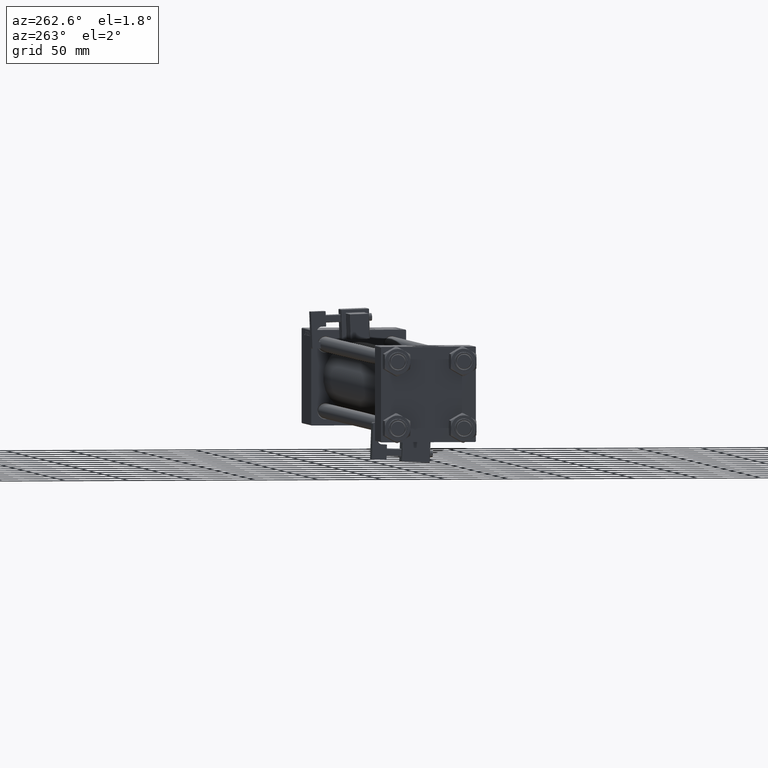
[diagram: clean part render]
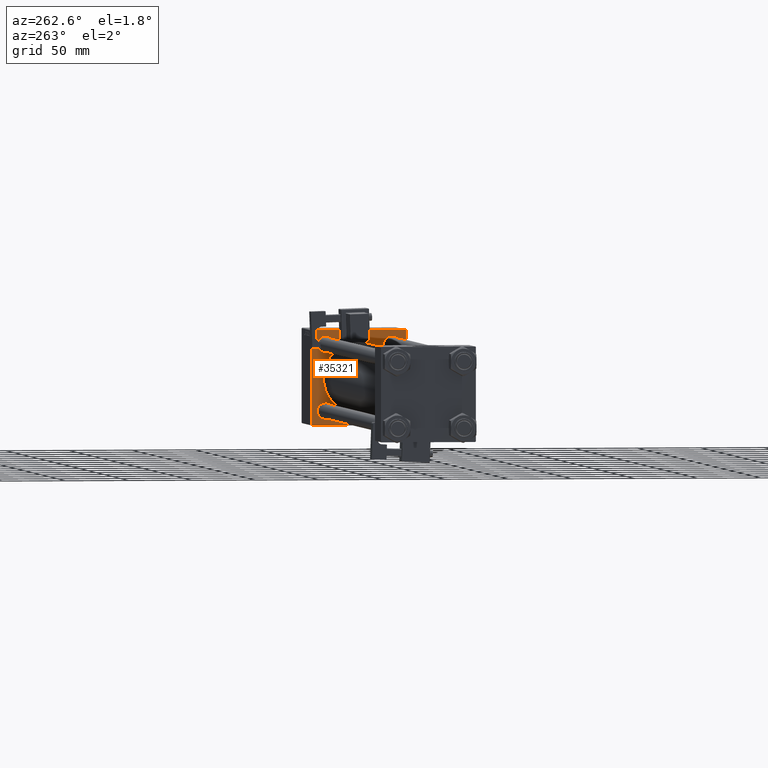
[diagram: same view with one face highlighted and labeled with its STEP entity id]
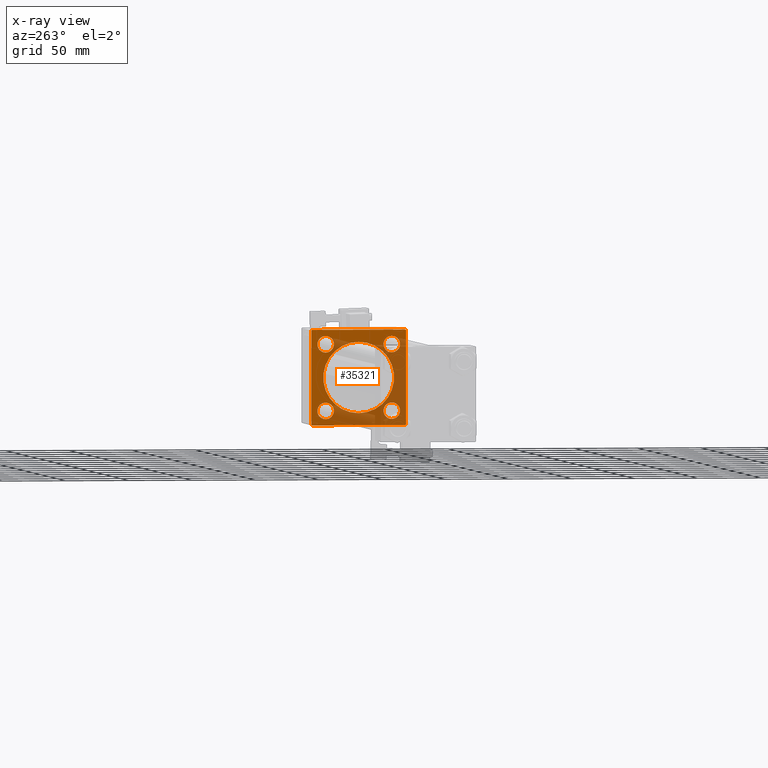
[diagram: x-ray of the same camera — body ghosted, the highlighted face saturated]
A machine part, auxiliary view. The second image highlights one B-rep face of the part: STEP entity #35321.
The next image is the same camera in x-ray: the body ghosted, the highlighted face saturated — about 49% of this face is hidden behind the body in this view.
In plain terms, the highlighted planar face has unit normal (-1, 0, 0).
Its self-contained STEP definition (entity closure, byte-faithful):
#252 = LINE ( 'NONE', #21366, #17039 ) ;
#404 = AXIS2_PLACEMENT_3D ( 'NONE', #5112, #52244, #34440 ) ;
#415 = EDGE_CURVE ( 'NONE', #4056, #26097, #22792, .T. ) ;
#735 = CARTESIAN_POINT ( 'NONE',  ( 425.0000000000000000, 26.14999999999999858, 32.65000000000001990 ) ) ;
#748 = VERTEX_POINT ( 'NONE', #21806 ) ;
#1068 = AXIS2_PLACEMENT_3D ( 'NONE', #2478, #43844, #23567 ) ;
#1238 = DIRECTION ( 'NONE',  ( 0.000000000000000000, 0.000000000000000000, 1.000000000000000000 ) ) ;
#1769 = CARTESIAN_POINT ( 'NONE',  ( 425.0000000000000000, -37.00000000000000000, 37.49999999999997868 ) ) ;
#1925 = CIRCLE ( 'NONE', #32561, 6.500000000000008882 ) ;
#1971 = CIRCLE ( 'NONE', #1068, 6.500000000000008882 ) ;
#2130 = DIRECTION ( 'NONE',  ( 1.000000000000000000, 0.000000000000000000, -0.000000000000000000 ) ) ;
#2478 = CARTESIAN_POINT ( 'NONE',  ( 425.0000000000000000, 26.14999999999999858, 26.15000000000000213 ) ) ;
#2513 = AXIS2_PLACEMENT_3D ( 'NONE', #22948, #2130, #18845 ) ;
#2539 = CARTESIAN_POINT ( 'NONE',  ( 425.0000000000000000, -37.24999999999792522, -37.25000000000206057 ) ) ;
#2820 = CARTESIAN_POINT ( 'NONE',  ( 425.0000000000000000, 26.14999999999999858, 26.15000000000000213 ) ) ;
#3106 = AXIS2_PLACEMENT_3D ( 'NONE', #28769, #37259, #53993 ) ;
#3335 = CARTESIAN_POINT ( 'NONE',  ( 425.0000000000000000, 0.000000000000000000, 0.000000000000000000 ) ) ;
#3372 = CIRCLE ( 'NONE', #41008, 6.500000000000015987 ) ;
#3521 = CARTESIAN_POINT ( 'NONE',  ( 425.0000000000000000, -2.602085213965210642E-15, 0.000000000000000000 ) ) ;
#3577 = VECTOR ( 'NONE', #6892, 1000.000000000000000 ) ;
#3916 = DIRECTION ( 'NONE',  ( 0.000000000000000000, 0.000000000000000000, -1.000000000000000000 ) ) ;
#4056 = VERTEX_POINT ( 'NONE', #20994 ) ;
#4393 = AXIS2_PLACEMENT_3D ( 'NONE', #3521, #22410, #34479 ) ;
#4542 = VECTOR ( 'NONE', #19249, 1000.000000000000000 ) ;
#5032 = CARTESIAN_POINT ( 'NONE',  ( 425.0000000000000000, 37.50000000000000000, -36.99999999999993605 ) ) ;
#5110 = VERTEX_POINT ( 'NONE', #24784 ) ;
#5112 = CARTESIAN_POINT ( 'NONE',  ( 425.0000000000000000, 26.14999999999999858, -26.15000000000000213 ) ) ;
#5522 = ORIENTED_EDGE ( 'NONE', *, *, #38704, .T. ) ;
#6227 = VERTEX_POINT ( 'NONE', #735 ) ;
#6343 = VERTEX_POINT ( 'NONE', #46770 ) ;
#6398 = DIRECTION ( 'NONE',  ( 1.000000000000000000, 0.000000000000000000, -0.000000000000000000 ) ) ;
#6892 = DIRECTION ( 'NONE',  ( 0.000000000000000000, -1.000000000000000000, 0.000000000000000000 ) ) ;
#7300 = CARTESIAN_POINT ( 'NONE',  ( 425.0000000000000000, -2.602085213965210642E-15, 28.00000000000000000 ) ) ;
#7647 = CARTESIAN_POINT ( 'NONE',  ( 425.0000000000000000, -37.50000000000000000, 36.99999999999992184 ) ) ;
#7878 = EDGE_CURVE ( 'NONE', #16559, #51539, #24702, .T. ) ;
#8447 = CARTESIAN_POINT ( 'NONE',  ( 425.0000000000000000, -26.14999999999999147, -19.64999999999999503 ) ) ;
#10234 = CARTESIAN_POINT ( 'NONE',  ( 425.0000000000000000, 26.14999999999999858, -32.65000000000001990 ) ) ;
#10261 = CARTESIAN_POINT ( 'NONE',  ( 425.0000000000000000, -26.14999999999999147, -26.15000000000000924 ) ) ;
#10992 = LINE ( 'NONE', #27731, #3577 ) ;
#11884 = VERTEX_POINT ( 'NONE', #30634 ) ;
#12115 = EDGE_CURVE ( 'NONE', #31357, #5110, #17864, .T. ) ;
#13815 = EDGE_CURVE ( 'NONE', #44704, #34177, #252, .T. ) ;
#14102 = DIRECTION ( 'NONE',  ( 0.000000000000000000, 0.000000000000000000, 1.000000000000000000 ) ) ;
#14662 = ORIENTED_EDGE ( 'NONE', *, *, #14813, .F. ) ;
#14813 = EDGE_CURVE ( 'NONE', #53527, #34177, #37114, .T. ) ;
#15698 = CARTESIAN_POINT ( 'NONE',  ( 425.0000000000000000, -26.14999999999999147, 32.65000000000003411 ) ) ;
#16559 = VERTEX_POINT ( 'NONE', #10234 ) ;
#16987 = AXIS2_PLACEMENT_3D ( 'NONE', #3335, #36767, #52957 ) ;
#17039 = VECTOR ( 'NONE', #45467, 1000.000000000000000 ) ;
#17426 = DIRECTION ( 'NONE',  ( 1.000000000000000000, 0.000000000000000000, -0.000000000000000000 ) ) ;
#17729 = CIRCLE ( 'NONE', #24692, 6.500000000000015987 ) ;
#17864 = CIRCLE ( 'NONE', #24867, 6.500000000000015987 ) ;
#18309 = EDGE_LOOP ( 'NONE', ( #23121, #29105, #23815, #36998, #14662, #26854, #41607, #32701 ) ) ;
#18845 = DIRECTION ( 'NONE',  ( 0.000000000000000000, 0.000000000000000000, 1.000000000000000000 ) ) ;
#19077 = ORIENTED_EDGE ( 'NONE', *, *, #45075, .T. ) ;
#19229 = ORIENTED_EDGE ( 'NONE', *, *, #53521, .T. ) ;
#19249 = DIRECTION ( 'NONE',  ( 0.000000000000000000, -0.7071067811865867636, 0.7071067811865081598 ) ) ;
#19729 = VECTOR ( 'NONE', #38414, 1000.000000000000000 ) ;
#20332 = DIRECTION ( 'NONE',  ( -0.000000000000000000, -0.7071067811865033859, -0.7071067811865916486 ) ) ;
#20994 = CARTESIAN_POINT ( 'NONE',  ( 425.0000000000000000, 8.269258236473776482E-16, -28.00000000000000000 ) ) ;
#21366 = CARTESIAN_POINT ( 'NONE',  ( 425.0000000000000000, -37.25000000000204636, 37.24999999999791100 ) ) ;
#21569 = EDGE_CURVE ( 'NONE', #11884, #44058, #10992, .T. ) ;
#21806 = CARTESIAN_POINT ( 'NONE',  ( 425.0000000000000000, -26.14999999999999147, 19.64999999999999147 ) ) ;
#22312 = EDGE_LOOP ( 'NONE', ( #19229, #33482 ) ) ;
#22410 = DIRECTION ( 'NONE',  ( 1.000000000000000000, 0.000000000000000000, 0.000000000000000000 ) ) ;
#22792 = CIRCLE ( 'NONE', #4393, 28.00000000000000000 ) ;
#22948 = CARTESIAN_POINT ( 'NONE',  ( 425.0000000000000000, -26.14999999999999147, 26.15000000000000924 ) ) ;
#23121 = ORIENTED_EDGE ( 'NONE', *, *, #21569, .T. ) ;
#23131 = CIRCLE ( 'NONE', #404, 6.500000000000015987 ) ;
#23333 = ORIENTED_EDGE ( 'NONE', *, *, #45266, .T. ) ;
#23404 = ORIENTED_EDGE ( 'NONE', *, *, #12115, .T. ) ;
#23567 = DIRECTION ( 'NONE',  ( 0.000000000000000000, 0.000000000000000000, 1.000000000000000000 ) ) ;
#23689 = EDGE_LOOP ( 'NONE', ( #19077, #24812 ) ) ;
#23815 = ORIENTED_EDGE ( 'NONE', *, *, #38470, .F. ) ;
#24209 = LINE ( 'NONE', #45556, #32682 ) ;
#24692 = AXIS2_PLACEMENT_3D ( 'NONE', #50565, #29177, #38223 ) ;
#24698 = FACE_BOUND ( 'NONE', #45827, .T. ) ;
#24702 = CIRCLE ( 'NONE', #27327, 6.500000000000015987 ) ;
#24784 = CARTESIAN_POINT ( 'NONE',  ( 425.0000000000000000, -26.14999999999999147, -32.65000000000002700 ) ) ;
#24812 = ORIENTED_EDGE ( 'NONE', *, *, #28320, .T. ) ;
#24867 = AXIS2_PLACEMENT_3D ( 'NONE', #10261, #43695, #1238 ) ;
#24885 = CARTESIAN_POINT ( 'NONE',  ( 425.0000000000000000, 26.14999999999999858, -19.64999999999998792 ) ) ;
#26097 = VERTEX_POINT ( 'NONE', #7300 ) ;
#26854 = ORIENTED_EDGE ( 'NONE', *, *, #30490, .T. ) ;
#26967 = ORIENTED_EDGE ( 'NONE', *, *, #415, .T. ) ;
#27162 = DIRECTION ( 'NONE',  ( 1.000000000000000000, 0.000000000000000000, -0.000000000000000000 ) ) ;
#27327 = AXIS2_PLACEMENT_3D ( 'NONE', #48804, #27162, #39769 ) ;
#27731 = CARTESIAN_POINT ( 'NONE',  ( 425.0000000000000000, 37.50000000000000000, -37.50000000000000000 ) ) ;
#27818 = EDGE_CURVE ( 'NONE', #44058, #48465, #52968, .T. ) ;
#28012 = CARTESIAN_POINT ( 'NONE',  ( 425.0000000000000000, 37.25000000000230926, -37.24999999999766231 ) ) ;
#28127 = EDGE_CURVE ( 'NONE', #47875, #6227, #1971, .T. ) ;
#28272 = FACE_BOUND ( 'NONE', #22312, .T. ) ;
#28320 = EDGE_CURVE ( 'NONE', #748, #39550, #17729, .T. ) ;
#28769 = CARTESIAN_POINT ( 'NONE',  ( 425.0000000000000000, -2.602085213965210642E-15, 0.000000000000000000 ) ) ;
#29105 = ORIENTED_EDGE ( 'NONE', *, *, #27818, .T. ) ;
#29177 = DIRECTION ( 'NONE',  ( 1.000000000000000000, 0.000000000000000000, -0.000000000000000000 ) ) ;
#29421 = CARTESIAN_POINT ( 'NONE',  ( 425.0000000000000000, -36.99999999999995737, -37.50000000000000000 ) ) ;
#30490 = EDGE_CURVE ( 'NONE', #53527, #6343, #49363, .T. ) ;
#30634 = CARTESIAN_POINT ( 'NONE',  ( 425.0000000000000000, 37.00000000000000000, -37.50000000000000000 ) ) ;
#31357 = VERTEX_POINT ( 'NONE', #8447 ) ;
#31543 = CARTESIAN_POINT ( 'NONE',  ( 425.0000000000000000, 26.14999999999999858, 19.64999999999999147 ) ) ;
#31694 = VERTEX_POINT ( 'NONE', #5032 ) ;
#31854 = FACE_BOUND ( 'NONE', #23689, .T. ) ;
#32561 = AXIS2_PLACEMENT_3D ( 'NONE', #2820, #6398, #52984 ) ;
#32642 = DIRECTION ( 'NONE',  ( 0.000000000000000000, 0.7071067811865867636, -0.7071067811865081598 ) ) ;
#32682 = VECTOR ( 'NONE', #3916, 1000.000000000000000 ) ;
#32701 = ORIENTED_EDGE ( 'NONE', *, *, #36221, .T. ) ;
#33482 = ORIENTED_EDGE ( 'NONE', *, *, #7878, .T. ) ;
#34177 = VERTEX_POINT ( 'NONE', #1769 ) ;
#34440 = DIRECTION ( 'NONE',  ( 0.000000000000000000, 0.000000000000000000, 1.000000000000000000 ) ) ;
#34479 = DIRECTION ( 'NONE',  ( 0.000000000000000000, 0.000000000000000000, -1.000000000000000000 ) ) ;
#34574 = LINE ( 'NONE', #47716, #19729 ) ;
#34712 = CARTESIAN_POINT ( 'NONE',  ( 425.0000000000000000, 36.99999999999994316, 37.49999999999999289 ) ) ;
#35321 = ADVANCED_FACE ( 'NONE', ( #31854, #40885, #28272, #24698, #41409, #44974 ), #45509, .T. ) ;
#36221 = EDGE_CURVE ( 'NONE', #31694, #11884, #41154, .T. ) ;
#36492 = CARTESIAN_POINT ( 'NONE',  ( 425.0000000000000000, 37.24999999999791100, 37.25000000000204636 ) ) ;
#36767 = DIRECTION ( 'NONE',  ( -1.000000000000000000, -0.000000000000000000, 0.000000000000000000 ) ) ;
#36998 = ORIENTED_EDGE ( 'NONE', *, *, #13815, .T. ) ;
#37114 = LINE ( 'NONE', #46146, #40719 ) ;
#37259 = DIRECTION ( 'NONE',  ( 1.000000000000000000, 0.000000000000000000, 0.000000000000000000 ) ) ;
#38036 = VECTOR ( 'NONE', #20332, 1000.000000000000000 ) ;
#38203 = DIRECTION ( 'NONE',  ( 0.000000000000000000, -1.000000000000000000, -1.850371707708594316E-16 ) ) ;
#38223 = DIRECTION ( 'NONE',  ( 0.000000000000000000, 0.000000000000000000, 1.000000000000000000 ) ) ;
#38414 = DIRECTION ( 'NONE',  ( 0.000000000000000000, -9.251858538542972814E-17, -1.000000000000000000 ) ) ;
#38470 = EDGE_CURVE ( 'NONE', #44704, #48465, #34574, .T. ) ;
#38704 = EDGE_CURVE ( 'NONE', #26097, #4056, #52994, .T. ) ;
#38817 = CARTESIAN_POINT ( 'NONE',  ( 425.0000000000000000, -37.50000000000000711, -37.00000000000000711 ) ) ;
#39550 = VERTEX_POINT ( 'NONE', #15698 ) ;
#39769 = DIRECTION ( 'NONE',  ( 0.000000000000000000, 0.000000000000000000, 1.000000000000000000 ) ) ;
#39776 = ORIENTED_EDGE ( 'NONE', *, *, #48802, .T. ) ;
#40719 = VECTOR ( 'NONE', #38203, 1000.000000000000000 ) ;
#40885 = FACE_BOUND ( 'NONE', #42530, .T. ) ;
#41008 = AXIS2_PLACEMENT_3D ( 'NONE', #51674, #17426, #14102 ) ;
#41154 = LINE ( 'NONE', #28012, #38036 ) ;
#41409 = FACE_BOUND ( 'NONE', #53704, .T. ) ;
#41607 = ORIENTED_EDGE ( 'NONE', *, *, #51168, .T. ) ;
#42530 = EDGE_LOOP ( 'NONE', ( #39776, #49622 ) ) ;
#43621 = CIRCLE ( 'NONE', #2513, 6.500000000000015987 ) ;
#43695 = DIRECTION ( 'NONE',  ( 1.000000000000000000, 0.000000000000000000, -0.000000000000000000 ) ) ;
#43844 = DIRECTION ( 'NONE',  ( 1.000000000000000000, 0.000000000000000000, -0.000000000000000000 ) ) ;
#44058 = VERTEX_POINT ( 'NONE', #29421 ) ;
#44704 = VERTEX_POINT ( 'NONE', #7647 ) ;
#44904 = VECTOR ( 'NONE', #32642, 1000.000000000000000 ) ;
#44974 = FACE_OUTER_BOUND ( 'NONE', #18309, .T. ) ;
#45075 = EDGE_CURVE ( 'NONE', #39550, #748, #43621, .T. ) ;
#45266 = EDGE_CURVE ( 'NONE', #5110, #31357, #3372, .T. ) ;
#45467 = DIRECTION ( 'NONE',  ( -0.000000000000000000, 0.7071067811865081598, 0.7071067811865867636 ) ) ;
#45509 = PLANE ( 'NONE',  #16987 ) ;
#45556 = CARTESIAN_POINT ( 'NONE',  ( 425.0000000000000000, 37.50000000000000000, 37.49999999999999289 ) ) ;
#45827 = EDGE_LOOP ( 'NONE', ( #23404, #23333 ) ) ;
#46146 = CARTESIAN_POINT ( 'NONE',  ( 425.0000000000000000, 37.50000000000000000, 37.49999999999999289 ) ) ;
#46770 = CARTESIAN_POINT ( 'NONE',  ( 425.0000000000000000, 37.50000000000000000, 36.99999999999999289 ) ) ;
#47716 = CARTESIAN_POINT ( 'NONE',  ( 425.0000000000000000, -37.50000000000000000, 37.49999999999997868 ) ) ;
#47875 = VERTEX_POINT ( 'NONE', #31543 ) ;
#48465 = VERTEX_POINT ( 'NONE', #38817 ) ;
#48802 = EDGE_CURVE ( 'NONE', #6227, #47875, #1925, .T. ) ;
#48804 = CARTESIAN_POINT ( 'NONE',  ( 425.0000000000000000, 26.14999999999999858, -26.15000000000000213 ) ) ;
#49363 = LINE ( 'NONE', #36492, #44904 ) ;
#49622 = ORIENTED_EDGE ( 'NONE', *, *, #28127, .T. ) ;
#50565 = CARTESIAN_POINT ( 'NONE',  ( 425.0000000000000000, -26.14999999999999147, 26.15000000000000924 ) ) ;
#51168 = EDGE_CURVE ( 'NONE', #6343, #31694, #24209, .T. ) ;
#51539 = VERTEX_POINT ( 'NONE', #24885 ) ;
#51674 = CARTESIAN_POINT ( 'NONE',  ( 425.0000000000000000, -26.14999999999999147, -26.15000000000000924 ) ) ;
#52244 = DIRECTION ( 'NONE',  ( 1.000000000000000000, 0.000000000000000000, -0.000000000000000000 ) ) ;
#52957 = DIRECTION ( 'NONE',  ( 0.000000000000000000, 0.000000000000000000, 1.000000000000000000 ) ) ;
#52968 = LINE ( 'NONE', #2539, #4542 ) ;
#52984 = DIRECTION ( 'NONE',  ( 0.000000000000000000, 0.000000000000000000, 1.000000000000000000 ) ) ;
#52994 = CIRCLE ( 'NONE', #3106, 28.00000000000000000 ) ;
#53521 = EDGE_CURVE ( 'NONE', #51539, #16559, #23131, .T. ) ;
#53527 = VERTEX_POINT ( 'NONE', #34712 ) ;
#53704 = EDGE_LOOP ( 'NONE', ( #5522, #26967 ) ) ;
#53993 = DIRECTION ( 'NONE',  ( 0.000000000000000000, 0.000000000000000000, -1.000000000000000000 ) ) ;